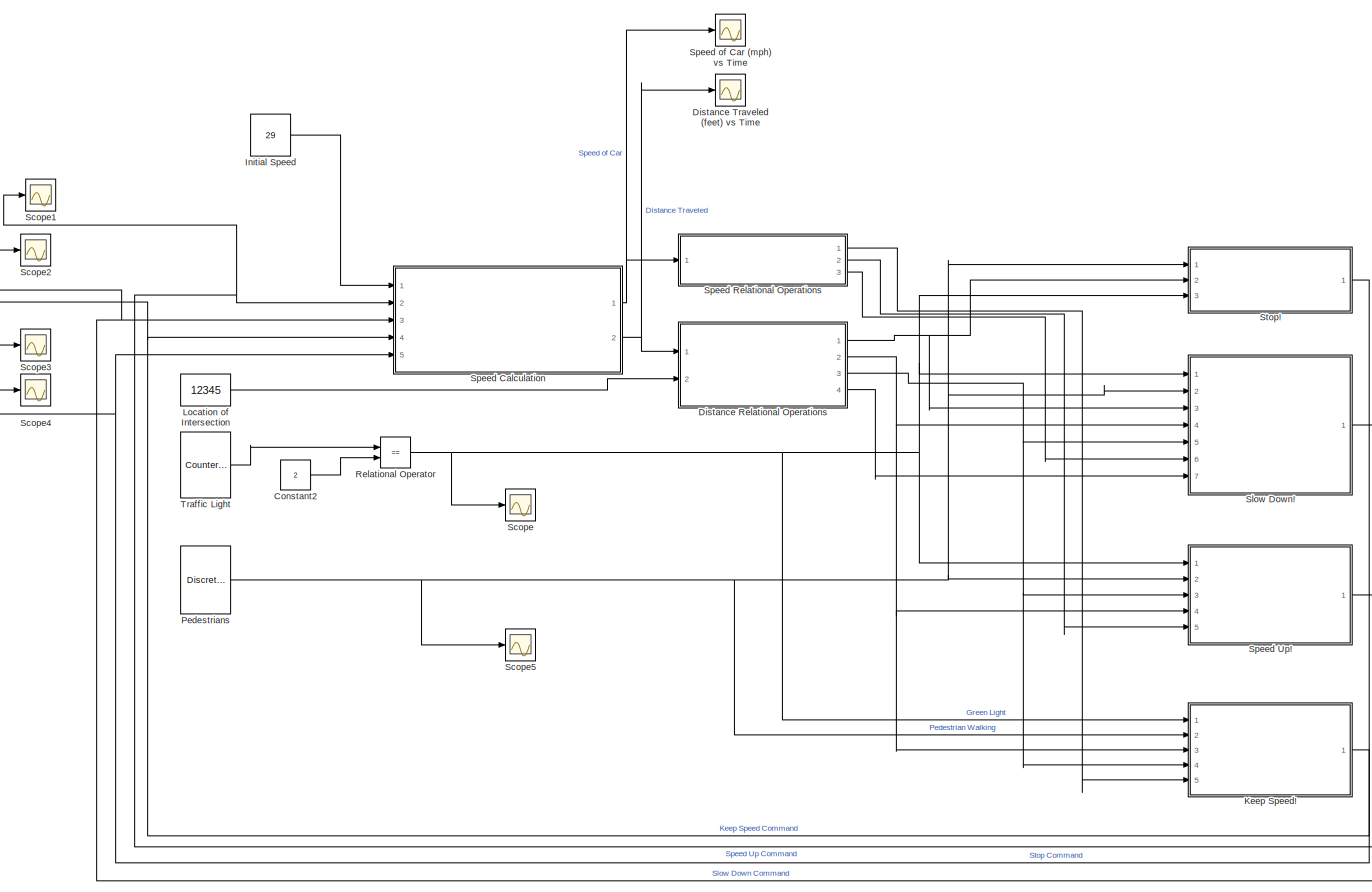
[diagram: root canvas - part 1/1, most of the canvas]
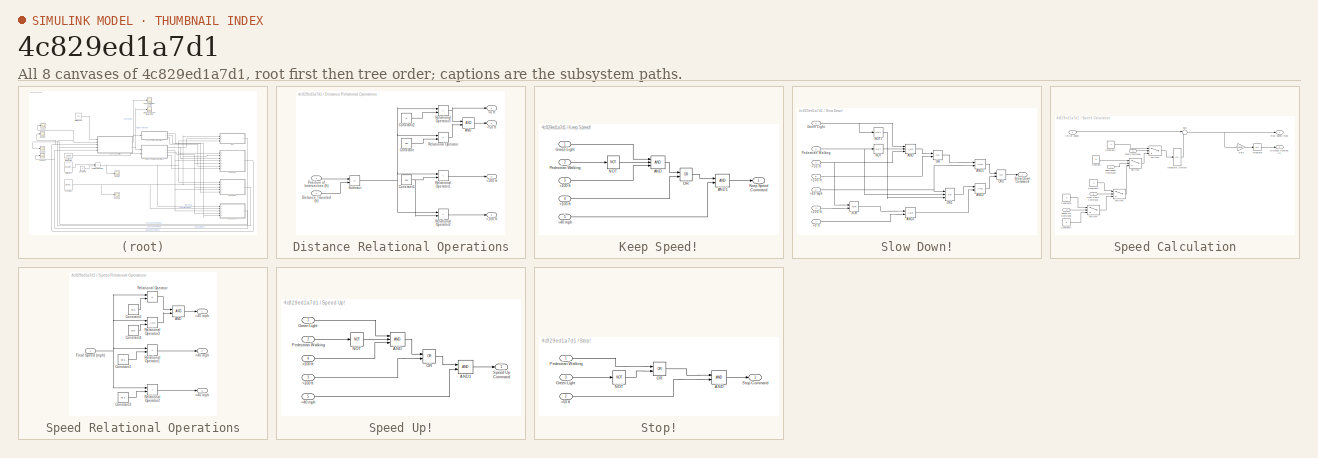
[diagram: thumbnail index - all 8 canvases of the model, root first then tree order]
MODEL slx_4c829ed1a7d1
KIND model
CONFIG AbsTol = auto
CONFIG EnableMultiTasking = off
CONFIG FixedStep = auto
CONFIG MaxStep = auto
CONFIG MinStep = auto
CONFIG RelTol = 1e-3
CONFIG SampleTimeConstraint = Unconstrained
CONFIG SolverName = VariableStepAuto
CONFIG StartTime = 0.0
CONFIG StopTime = 400
BLOCK [Constant] Constant2
  Value = 2
BLOCK [SubSystem] Distance Relational Operations
  Ports = [2, 4]
  RequestExecContextInheritance = off
BLOCK [Outport] Distance Relational Operations/<100 ft
  Port = 2
BLOCK [Outport] Distance Relational Operations/<50 ft
BLOCK [Outport] Distance Relational Operations/>0 ft
  Port = 4
BLOCK [Outport] Distance Relational Operations/>100 ft
  Port = 3
BLOCK [Logic] Distance Relational Operations/AND
  AllPortsSameDT = off
  IconShape = distinctive
  OutDataTypeStr = boolean
  Ports = [2, 1]
BLOCK [Constant] Distance Relational Operations/Constant
  Value = 150
BLOCK [Constant] Distance Relational Operations/Constant1
  Value = 360
BLOCK [Constant] Distance Relational Operations/Constant2
  Value = 0
BLOCK [Inport] Distance Relational Operations/Distance Traveled (ft)
BLOCK [Inport] Distance Relational Operations/Position of Intersection (ft)
  Port = 2
BLOCK [RelationalOperator] Distance Relational Operations/Relational Operator
  InputSameDT = off
  Operator = <
  OutDataTypeStr = boolean
  Ports = [2, 1]
  RndMeth = Simplest
BLOCK [RelationalOperator] Distance Relational Operations/Relational Operator1
  InputSameDT = off
  Operator = <
  OutDataTypeStr = boolean
  Ports = [2, 1]
  RndMeth = Simplest
BLOCK [RelationalOperator] Distance Relational Operations/Relational Operator2
  InputSameDT = off
  Operator = >
  OutDataTypeStr = boolean
  Ports = [2, 1]
  RndMeth = Simplest
BLOCK [RelationalOperator] Distance Relational Operations/Relational Operator3
  InputSameDT = off
  Operator = >
  OutDataTypeStr = boolean
  Ports = [2, 1]
  RndMeth = Simplest
BLOCK [Sum] Distance Relational Operations/Subtract
  IconShape = rectangular
  Inputs = +-
  Ports = [2, 1]
BLOCK [Scope] Distance Traveled (feet) vs Time
  Floating = off
  NumInputPorts = 1
  Ports = [1]
  ScopeSpecificationString = Simulink.scopes.TimeScopeBlockCfg('CurrentConfiguration', extmgr.ConfigurationSet(extmgr.Configuration('Core','General UI',true),extmgr.Configuration('Core','Source UI',true),extmgr.Configuration('Sources','WiredSimulink',true),extmgr.Configuration('Visuals','Time Domain',true,'SerializedDisplays',{struct('MinYLimReal','-2105.17421','MaxYLimReal','18946.56786','YLabelReal','','MinYLimMag','  0.000...<+1423ch>
BLOCK [Constant] Initial Speed
  Value = 29
BLOCK [SubSystem] Keep Speed!
  Ports = [5, 1]
  RequestExecContextInheritance = off
BLOCK [Inport] Keep Speed!/<100 ft
  Port = 3
BLOCK [Inport] Keep Speed!/=40 mph
  Port = 5
BLOCK [Inport] Keep Speed!/>100 ft
  Port = 4
BLOCK [Logic] Keep Speed!/AND
  AllPortsSameDT = off
  IconShape = distinctive
  Inputs = 3
  OutDataTypeStr = boolean
  Ports = [3, 1]
BLOCK [Logic] Keep Speed!/AND1
  AllPortsSameDT = off
  IconShape = distinctive
  OutDataTypeStr = boolean
  Ports = [2, 1]
BLOCK [Inport] Keep Speed!/Green Light
BLOCK [Outport] Keep Speed!/Keep Speed Command
BLOCK [Logic] Keep Speed!/NOT
  AllPortsSameDT = off
  IconShape = distinctive
  Operator = NOT
  OutDataTypeStr = boolean
  Ports = [1, 1]
BLOCK [Logic] Keep Speed!/OR
  AllPortsSameDT = off
  IconShape = distinctive
  Operator = OR
  OutDataTypeStr = boolean
  Ports = [2, 1]
BLOCK [Inport] Keep Speed!/Pedestrian Walking
  Port = 2
BLOCK [Constant] Location of Intersection
  Value = 12345
BLOCK [DiscretePulseGenerator] Pedestrians
  Period = 30
  Ports = [0, 1]
  PulseType = Time based
  PulseWidth = 50
BLOCK [RelationalOperator] Relational Operator
  InputSameDT = off
  Operator = ==
  OutDataTypeStr = boolean
  Ports = [2, 1]
  RndMeth = Simplest
BLOCK [Scope] Scope
  Floating = off
  NumInputPorts = 1
  Ports = [1]
  ScopeSpecificationString = Simulink.scopes.TimeScopeBlockCfg('CurrentConfiguration', extmgr.ConfigurationSet(extmgr.Configuration('Core','General UI',true),extmgr.Configuration('Core','Source UI',true),extmgr.Configuration('Sources','WiredSimulink',true,'DataLoggingVariableName','ScopeData5'),extmgr.Configuration('Visuals','Time Domain',true,'SerializedDisplays',{struct('MinYLimReal','-0.125','MaxYLimReal','1.125','YLabelRe...<+1418ch>
BLOCK [Scope] Scope1
  Floating = off
  NumInputPorts = 1
  Ports = [1]
  ScopeSpecificationString = Simulink.scopes.TimeScopeBlockCfg('CurrentConfiguration', extmgr.ConfigurationSet(extmgr.Configuration('Core','General UI',true),extmgr.Configuration('Core','Source UI',true),extmgr.Configuration('Sources','WiredSimulink',true,'DataLoggingVariableName','ScopeData2'),extmgr.Configuration('Visuals','Time Domain',true,'SerializedDisplays',{struct('MinYLimReal','-0.125','MaxYLimReal','1.125','YLabelRe...<+1392ch>
BLOCK [Scope] Scope2
  Floating = off
  NumInputPorts = 1
  Ports = [1]
  ScopeSpecificationString = Simulink.scopes.TimeScopeBlockCfg('CurrentConfiguration', extmgr.ConfigurationSet(extmgr.Configuration('Core','General UI',true),extmgr.Configuration('Core','Source UI',true),extmgr.Configuration('Sources','WiredSimulink',true,'DataLoggingVariableName','ScopeData3'),extmgr.Configuration('Visuals','Time Domain',true,'SerializedDisplays',{struct('MinYLimReal','-0.125','MaxYLimReal','1.125','YLabelRe...<+1393ch>
BLOCK [Scope] Scope3
  Floating = off
  NumInputPorts = 1
  Ports = [1]
  ScopeSpecificationString = Simulink.scopes.TimeScopeBlockCfg('CurrentConfiguration', extmgr.ConfigurationSet(extmgr.Configuration('Core','General UI',true),extmgr.Configuration('Core','Source UI',true),extmgr.Configuration('Sources','WiredSimulink',true,'DataLoggingVariableName','ScopeData4'),extmgr.Configuration('Visuals','Time Domain',true,'SerializedDisplays',{struct('MinYLimReal','-0.125','MaxYLimReal','1.125','YLabelRe...<+1392ch>
BLOCK [Scope] Scope4
  Floating = off
  NumInputPorts = 1
  Ports = [1]
  ScopeSpecificationString = Simulink.scopes.TimeScopeBlockCfg('CurrentConfiguration', extmgr.ConfigurationSet(extmgr.Configuration('Core','General UI',true),extmgr.Configuration('Core','Source UI',true),extmgr.Configuration('Sources','WiredSimulink',true,'DataLoggingVariableName','ScopeData6'),extmgr.Configuration('Visuals','Time Domain',true,'SerializedDisplays',{struct('MinYLimReal','-0.125','MaxYLimReal','1.125','YLabelRe...<+1388ch>
BLOCK [Scope] Scope5
  Floating = off
  NumInputPorts = 1
  Ports = [1]
  ScopeSpecificationString = Simulink.scopes.TimeScopeBlockCfg('CurrentConfiguration', extmgr.ConfigurationSet(extmgr.Configuration('Core','General UI',true),extmgr.Configuration('Core','Source UI',true),extmgr.Configuration('Sources','WiredSimulink',true,'DataLoggingVariableName','ScopeData7'),extmgr.Configuration('Visuals','Time Domain',true,'SerializedDisplays',{struct('MinYLimReal','-0.125','MaxYLimReal','1.125','YLabelRe...<+1427ch>
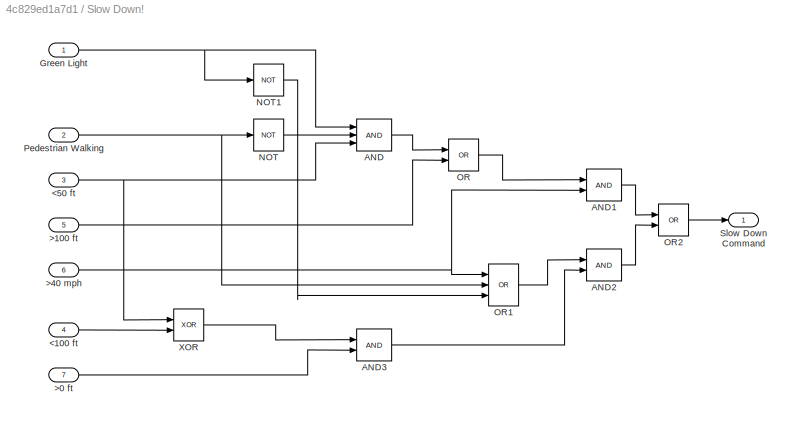
BLOCK [SubSystem] Slow Down!
  Ports = [7, 1]
  RequestExecContextInheritance = off
BLOCK [Inport] Slow Down!/<100 ft
  Port = 4
BLOCK [Inport] Slow Down!/<50 ft
  Port = 3
BLOCK [Inport] Slow Down!/>0 ft
  Port = 7
BLOCK [Inport] Slow Down!/>100 ft
  Port = 5
BLOCK [Inport] Slow Down!/>40 mph
  Port = 6
BLOCK [Logic] Slow Down!/AND
  AllPortsSameDT = off
  IconShape = distinctive
  Inputs = 3
  OutDataTypeStr = boolean
  Ports = [3, 1]
BLOCK [Logic] Slow Down!/AND1
  AllPortsSameDT = off
  IconShape = distinctive
  OutDataTypeStr = boolean
  Ports = [2, 1]
BLOCK [Logic] Slow Down!/AND2
  AllPortsSameDT = off
  IconShape = distinctive
  OutDataTypeStr = boolean
  Ports = [2, 1]
BLOCK [Logic] Slow Down!/AND3
  AllPortsSameDT = off
  IconShape = distinctive
  OutDataTypeStr = boolean
  Ports = [2, 1]
BLOCK [Inport] Slow Down!/Green Light
BLOCK [Logic] Slow Down!/NOT
  AllPortsSameDT = off
  IconShape = distinctive
  Operator = NOT
  OutDataTypeStr = boolean
  Ports = [1, 1]
BLOCK [Logic] Slow Down!/NOT1
  AllPortsSameDT = off
  IconShape = distinctive
  Operator = NOT
  OutDataTypeStr = boolean
  Ports = [1, 1]
BLOCK [Logic] Slow Down!/OR
  AllPortsSameDT = off
  IconShape = distinctive
  Operator = OR
  OutDataTypeStr = boolean
  Ports = [2, 1]
BLOCK [Logic] Slow Down!/OR1
  AllPortsSameDT = off
  IconShape = distinctive
  Inputs = 3
  Operator = OR
  OutDataTypeStr = boolean
  Ports = [3, 1]
BLOCK [Logic] Slow Down!/OR2
  AllPortsSameDT = off
  IconShape = distinctive
  Operator = OR
  OutDataTypeStr = boolean
  Ports = [2, 1]
BLOCK [Inport] Slow Down!/Pedestrian Walking
  Port = 2
BLOCK [Outport] Slow Down!/Slow Down Command
BLOCK [Logic] Slow Down!/XOR
  AllPortsSameDT = off
  IconShape = distinctive
  Operator = XOR
  OutDataTypeStr = boolean
  Ports = [2, 1]
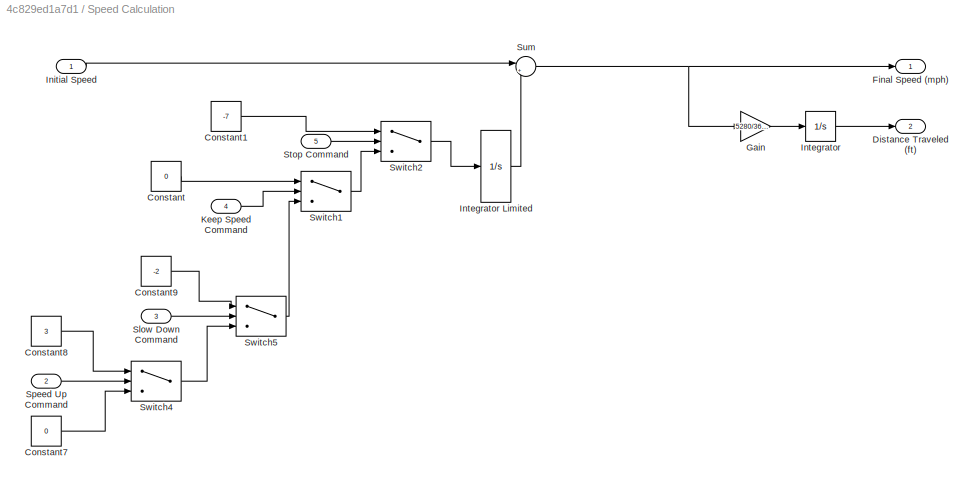
BLOCK [SubSystem] Speed Calculation
  Ports = [5, 2]
  RequestExecContextInheritance = off
BLOCK [Constant] Speed Calculation/Constant
  Value = 0
BLOCK [Constant] Speed Calculation/Constant1
  Value = -7
BLOCK [Constant] Speed Calculation/Constant7
  Value = 0
BLOCK [Constant] Speed Calculation/Constant8
  Value = 3
BLOCK [Constant] Speed Calculation/Constant9
  Value = -2
BLOCK [Outport] Speed Calculation/Distance Traveled (ft)
  Port = 2
BLOCK [Outport] Speed Calculation/Final Speed (mph)
BLOCK [Gain] Speed Calculation/Gain
  Gain = 5280/3600
BLOCK [Inport] Speed Calculation/Initial Speed
BLOCK [Integrator] Speed Calculation/Integrator
  Ports = [1, 1]
BLOCK [Integrator] Speed Calculation/Integrator Limited
  LimitOutput = on
  LowerSaturationLimit = -29
  Ports = [1, 1]
  UpperSaturationLimit = 70
BLOCK [Inport] Speed Calculation/Keep Speed Command
  Port = 4
BLOCK [Inport] Speed Calculation/Slow Down Command
  Port = 3
BLOCK [Inport] Speed Calculation/Speed Up Command
  Port = 2
BLOCK [Inport] Speed Calculation/Stop Command
  Port = 5
BLOCK [Sum] Speed Calculation/Sum
  Inputs = |++
  Ports = [2, 1]
BLOCK [Switch] Speed Calculation/Switch1
  Criteria = u2 > Threshold
  InputSameDT = off
  SaturateOnIntegerOverflow = off
BLOCK [Switch] Speed Calculation/Switch2
  Criteria = u2 > Threshold
  InputSameDT = off
  SaturateOnIntegerOverflow = off
BLOCK [Switch] Speed Calculation/Switch4
  Criteria = u2 > Threshold
  InputSameDT = off
  SaturateOnIntegerOverflow = off
BLOCK [Switch] Speed Calculation/Switch5
  Criteria = u2 > Threshold
  InputSameDT = off
  SaturateOnIntegerOverflow = off
BLOCK [SubSystem] Speed Relational Operations
  Ports = [1, 3]
  RequestExecContextInheritance = off
BLOCK [Outport] Speed Relational Operations/<40 mph
  Port = 2
BLOCK [Outport] Speed Relational Operations/=40 mph
BLOCK [Outport] Speed Relational Operations/>40 mph
  Port = 3
BLOCK [Logic] Speed Relational Operations/AND
  AllPortsSameDT = off
  IconShape = distinctive
  OutDataTypeStr = boolean
  Ports = [2, 1]
BLOCK [Constant] Speed Relational Operations/Constant1
  Value = 39.5
BLOCK [Constant] Speed Relational Operations/Constant2
  Value = 40.5
BLOCK [Constant] Speed Relational Operations/Constant3
  Value = 40.5
BLOCK [Constant] Speed Relational Operations/Constant4
  Value = 39.5
BLOCK [Inport] Speed Relational Operations/Final Speed (mph)
BLOCK [RelationalOperator] Speed Relational Operations/Relational Operator
  InputSameDT = off
  Operator = <=
  OutDataTypeStr = boolean
  Ports = [2, 1]
  RndMeth = Simplest
BLOCK [RelationalOperator] Speed Relational Operations/Relational Operator1
  InputSameDT = off
  Operator = <
  OutDataTypeStr = boolean
  Ports = [2, 1]
  RndMeth = Simplest
BLOCK [RelationalOperator] Speed Relational Operations/Relational Operator2
  InputSameDT = off
  Operator = >
  OutDataTypeStr = boolean
  Ports = [2, 1]
  RndMeth = Simplest
BLOCK [RelationalOperator] Speed Relational Operations/Relational Operator3
  InputSameDT = off
  OutDataTypeStr = boolean
  Ports = [2, 1]
  RndMeth = Simplest
BLOCK [SubSystem] Speed Up!
  Ports = [5, 1]
  RequestExecContextInheritance = off
BLOCK [Inport] Speed Up!/<100 ft
  Port = 4
BLOCK [Inport] Speed Up!/<40 mph
  Port = 5
BLOCK [Inport] Speed Up!/>100 ft
  Port = 3
BLOCK [Logic] Speed Up!/AND
  AllPortsSameDT = off
  IconShape = distinctive
  Inputs = 3
  OutDataTypeStr = boolean
  Ports = [3, 1]
BLOCK [Logic] Speed Up!/AND1
  AllPortsSameDT = off
  IconShape = distinctive
  OutDataTypeStr = boolean
  Ports = [2, 1]
BLOCK [Inport] Speed Up!/Green Light
BLOCK [Logic] Speed Up!/NOT
  AllPortsSameDT = off
  IconShape = distinctive
  Operator = NOT
  OutDataTypeStr = boolean
  Ports = [1, 1]
BLOCK [Logic] Speed Up!/OR
  AllPortsSameDT = off
  IconShape = distinctive
  Operator = OR
  OutDataTypeStr = boolean
  Ports = [2, 1]
BLOCK [Inport] Speed Up!/Pedestrian Walking
  Port = 2
BLOCK [Outport] Speed Up!/Speed Up Command
BLOCK [Scope] Speed of Car (mph) vs Time
  Floating = off
  NumInputPorts = 1
  Ports = [1]
  ScopeSpecificationString = Simulink.scopes.TimeScopeBlockCfg('CurrentConfiguration', extmgr.ConfigurationSet(extmgr.Configuration('Core','General UI',true),extmgr.Configuration('Core','Source UI',true),extmgr.Configuration('Sources','WiredSimulink',true,'DataLoggingVariableName','ScopeData1'),extmgr.Configuration('Visuals','Time Domain',true,'SerializedDisplays',{struct('MinYLimReal','-4.9375','MaxYLimReal','44.4375','YLabe...<+1450ch>
BLOCK [SubSystem] Stop!
  Ports = [3, 1]
  RequestExecContextInheritance = off
BLOCK [Inport] Stop!/<50 ft
  Port = 2
BLOCK [Logic] Stop!/AND
  AllPortsSameDT = off
  IconShape = distinctive
  OutDataTypeStr = boolean
  Ports = [2, 1]
BLOCK [Inport] Stop!/Green Light
  Port = 3
BLOCK [Logic] Stop!/NOT
  AllPortsSameDT = off
  IconShape = distinctive
  Operator = NOT
  OutDataTypeStr = boolean
  Ports = [1, 1]
BLOCK [Logic] Stop!/OR
  AllPortsSameDT = off
  IconShape = distinctive
  Operator = OR
  OutDataTypeStr = boolean
  Ports = [2, 1]
BLOCK [Inport] Stop!/Pedestrian Walking
BLOCK [Outport] Stop!/Stop Command
BLOCK [Reference] Traffic Light  REF=simulink/Sources/Counter
Limited
  Ports = [0, 1]
  SourceBlock = simulink/Sources/Counter\nLimited
  SourceProductBaseCode = SL
  SourceType = Counter Limited
LINE Constant2:1 -> Relational Operator:2
LINE Distance Relational Operations/AND:1 -> Distance Relational Operations/<50 ft:1
NET Distance Relational Operations/Constant1:1 -> Distance Relational Operations/Relational Operator1:2, Distance Relational Operations/Relational Operator2:2
LINE Distance Relational Operations/Constant2:1 -> Distance Relational Operations/Relational Operator3:2
LINE Distance Relational Operations/Constant:1 -> Distance Relational Operations/Relational Operator:2
LINE Distance Relational Operations/Distance Traveled (ft):1 -> Distance Relational Operations/Subtract:2
LINE Distance Relational Operations/Position of Intersection (ft):1 -> Distance Relational Operations/Subtract:1
LINE Distance Relational Operations/Relational Operator1:1 -> Distance Relational Operations/<100 ft:1
LINE Distance Relational Operations/Relational Operator2:1 -> Distance Relational Operations/>100 ft:1
NET Distance Relational Operations/Relational Operator3:1 -> Distance Relational Operations/>0 ft:1, Distance Relational Operations/AND:1
LINE Distance Relational Operations/Relational Operator:1 -> Distance Relational Operations/AND:2
NET Distance Relational Operations/Subtract:1 -> Distance Relational Operations/Relational Operator1:1, Distance Relational Operations/Relational Operator2:1, Distance Relational Operations/Relational Operator3:1, Distance Relational Operations/Relational Operator:1
NET Distance Relational Operations:1 -> Slow Down!:3, Stop!:2
NET Distance Relational Operations:2 -> Keep Speed!:3, Slow Down!:4, Speed Up!:4
NET Distance Relational Operations:3 -> Keep Speed!:4, Slow Down!:5, Speed Up!:3
LINE Distance Relational Operations:4 -> Slow Down!:7
LINE Initial Speed:1 -> Speed Calculation:1
LINE Keep Speed!/<100 ft:1 -> Keep Speed!/AND:3
LINE Keep Speed!/=40 mph:1 -> Keep Speed!/AND1:2
LINE Keep Speed!/>100 ft:1 -> Keep Speed!/OR:2
LINE Keep Speed!/AND1:1 -> Keep Speed!/Keep Speed Command:1
LINE Keep Speed!/AND:1 -> Keep Speed!/OR:1
LINE Keep Speed!/Green Light:1 -> Keep Speed!/AND:1
LINE Keep Speed!/NOT:1 -> Keep Speed!/AND:2
LINE Keep Speed!/OR:1 -> Keep Speed!/AND1:1
LINE Keep Speed!/Pedestrian Walking:1 -> Keep Speed!/NOT:1
NET Keep Speed!:1 -> Scope3:1, Speed Calculation:4
LINE Location of Intersection:1 -> Distance Relational Operations:2
NET Pedestrians:1 -> Keep Speed!:2, Scope5:1, Slow Down!:2, Speed Up!:2, Stop!:1
NET Relational Operator:1 -> Keep Speed!:1, Scope:1, Slow Down!:1, Speed Up!:1, Stop!:3
LINE Slow Down!/<100 ft:1 -> Slow Down!/XOR:2
NET Slow Down!/<50 ft:1 -> Slow Down!/AND:3, Slow Down!/XOR:1
LINE Slow Down!/>0 ft:1 -> Slow Down!/AND3:2
LINE Slow Down!/>100 ft:1 -> Slow Down!/OR:2
NET Slow Down!/>40 mph:1 -> Slow Down!/AND1:2, Slow Down!/OR1:1
LINE Slow Down!/AND1:1 -> Slow Down!/OR2:1
LINE Slow Down!/AND2:1 -> Slow Down!/OR2:2
LINE Slow Down!/AND3:1 -> Slow Down!/AND2:2
LINE Slow Down!/AND:1 -> Slow Down!/OR:1
NET Slow Down!/Green Light:1 -> Slow Down!/AND:1, Slow Down!/NOT1:1
LINE Slow Down!/NOT1:1 -> Slow Down!/OR1:3
LINE Slow Down!/NOT:1 -> Slow Down!/AND:2
LINE Slow Down!/OR1:1 -> Slow Down!/AND2:1
LINE Slow Down!/OR2:1 -> Slow Down!/Slow Down Command:1
LINE Slow Down!/OR:1 -> Slow Down!/AND1:1
NET Slow Down!/Pedestrian Walking:1 -> Slow Down!/NOT:1, Slow Down!/OR1:2
LINE Slow Down!/XOR:1 -> Slow Down!/AND3:1
NET Slow Down!:1 -> Scope2:1, Speed Calculation:3
LINE Speed Calculation/Constant1:1 -> Speed Calculation/Switch2:1
LINE Speed Calculation/Constant7:1 -> Speed Calculation/Switch4:3
LINE Speed Calculation/Constant8:1 -> Speed Calculation/Switch4:1
LINE Speed Calculation/Constant9:1 -> Speed Calculation/Switch5:1
LINE Speed Calculation/Constant:1 -> Speed Calculation/Switch1:1
LINE Speed Calculation/Gain:1 -> Speed Calculation/Integrator:1
LINE Speed Calculation/Initial Speed:1 -> Speed Calculation/Sum:1
LINE Speed Calculation/Integrator Limited:1 -> Speed Calculation/Sum:2
LINE Speed Calculation/Integrator:1 -> Speed Calculation/Distance Traveled (ft):1
LINE Speed Calculation/Keep Speed Command:1 -> Speed Calculation/Switch1:2
LINE Speed Calculation/Slow Down Command:1 -> Speed Calculation/Switch5:2
LINE Speed Calculation/Speed Up Command:1 -> Speed Calculation/Switch4:2
LINE Speed Calculation/Stop Command:1 -> Speed Calculation/Switch2:2
NET Speed Calculation/Sum:1 -> Speed Calculation/Final Speed (mph):1, Speed Calculation/Gain:1
LINE Speed Calculation/Switch1:1 -> Speed Calculation/Switch2:3
LINE Speed Calculation/Switch2:1 -> Speed Calculation/Integrator Limited:1
LINE Speed Calculation/Switch4:1 -> Speed Calculation/Switch5:3
LINE Speed Calculation/Switch5:1 -> Speed Calculation/Switch1:3
NET Speed Calculation:1 -> Speed Relational Operations:1, Speed of Car (mph) vs Time:1
NET Speed Calculation:2 -> Distance Relational Operations:1, Distance Traveled (feet) vs Time:1
LINE Speed Relational Operations/AND:1 -> Speed Relational Operations/=40 mph:1
LINE Speed Relational Operations/Constant1:1 -> Speed Relational Operations/Relational Operator1:2
LINE Speed Relational Operations/Constant2:1 -> Speed Relational Operations/Relational Operator:2
LINE Speed Relational Operations/Constant3:1 -> Speed Relational Operations/Relational Operator2:2
LINE Speed Relational Operations/Constant4:1 -> Speed Relational Operations/Relational Operator3:2
NET Speed Relational Operations/Final Speed (mph):1 -> Speed Relational Operations/Relational Operator1:1, Speed Relational Operations/Relational Operator2:1, Speed Relational Operations/Relational Operator3:1, Speed Relational Operations/Relational Operator:1
LINE Speed Relational Operations/Relational Operator1:1 -> Speed Relational Operations/<40 mph:1
LINE Speed Relational Operations/Relational Operator2:1 -> Speed Relational Operations/>40 mph:1
LINE Speed Relational Operations/Relational Operator3:1 -> Speed Relational Operations/AND:2
LINE Speed Relational Operations/Relational Operator:1 -> Speed Relational Operations/AND:1
LINE Speed Relational Operations:1 -> Keep Speed!:5
LINE Speed Relational Operations:2 -> Speed Up!:5
LINE Speed Relational Operations:3 -> Slow Down!:6
LINE Speed Up!/<100 ft:1 -> Speed Up!/AND:3
LINE Speed Up!/<40 mph:1 -> Speed Up!/AND1:2
LINE Speed Up!/>100 ft:1 -> Speed Up!/OR:2
LINE Speed Up!/AND1:1 -> Speed Up!/Speed Up Command:1
LINE Speed Up!/AND:1 -> Speed Up!/OR:1
LINE Speed Up!/Green Light:1 -> Speed Up!/AND:1
LINE Speed Up!/NOT:1 -> Speed Up!/AND:2
LINE Speed Up!/OR:1 -> Speed Up!/AND1:1
LINE Speed Up!/Pedestrian Walking:1 -> Speed Up!/NOT:1
NET Speed Up!:1 -> Scope1:1, Speed Calculation:2
LINE Stop!/<50 ft:1 -> Stop!/AND:2
LINE Stop!/AND:1 -> Stop!/Stop Command:1
LINE Stop!/Green Light:1 -> Stop!/NOT:1
LINE Stop!/NOT:1 -> Stop!/OR:2
LINE Stop!/OR:1 -> Stop!/AND:1
LINE Stop!/Pedestrian Walking:1 -> Stop!/OR:1
NET Stop!:1 -> Scope4:1, Speed Calculation:5
LINE Traffic Light:1 -> Relational Operator:1
note: NET lines group one-source signal fan-out (src -> all destinations, sorted); 1:1 wires keep LINE
